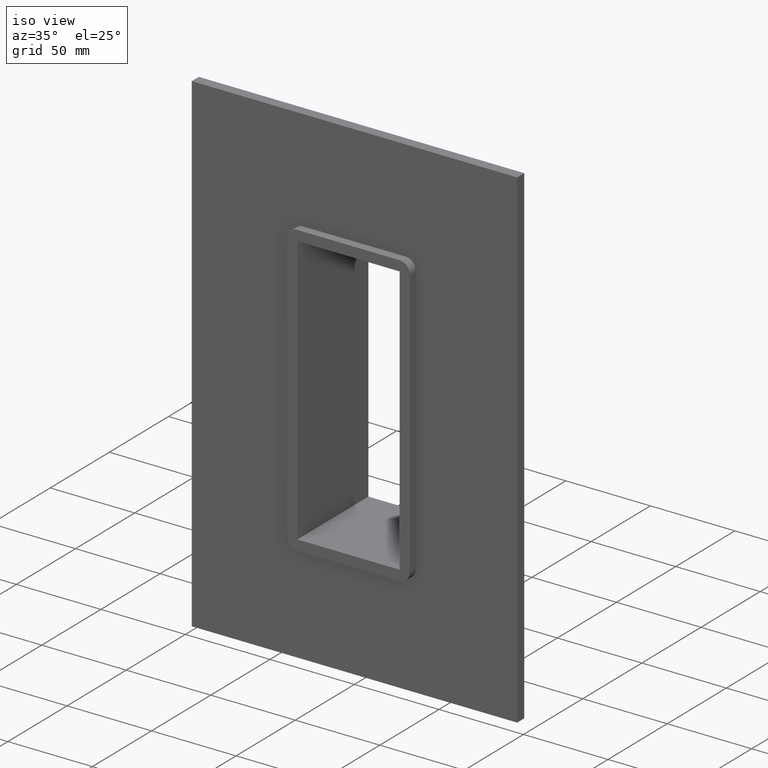
[diagram: clean part render]
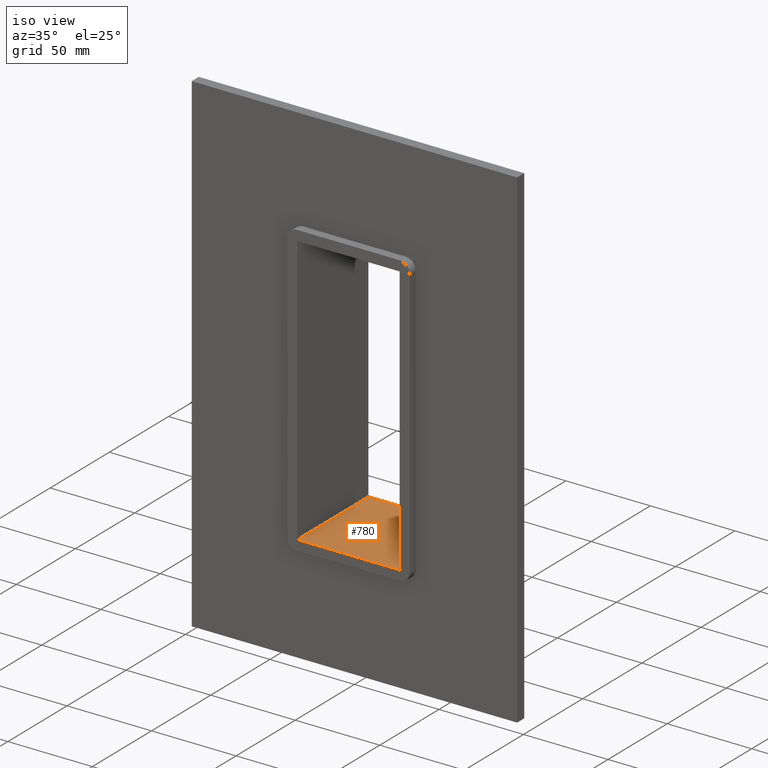
[diagram: same view with one face highlighted and labeled with its STEP entity id]
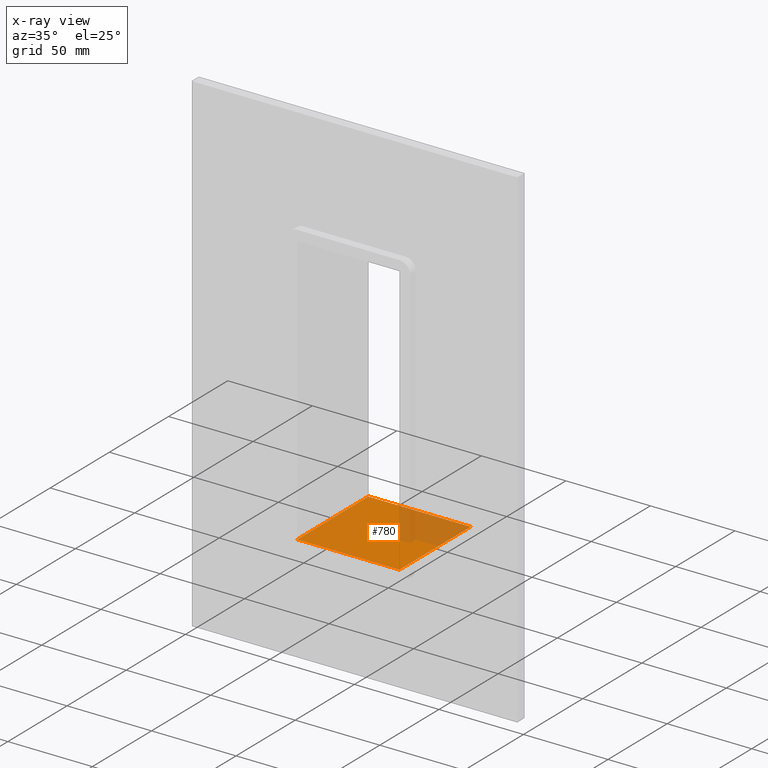
[diagram: x-ray of the same camera — body ghosted, the highlighted face saturated]
A machine part, iso view. The second image highlights one B-rep face of the part: STEP entity #780.
The next image is the same camera in x-ray: the body ghosted, the highlighted face saturated — about 26% of this face is hidden behind the body in this view.
In plain terms, the highlighted planar face has unit normal (0, 0, -1).
Its self-contained STEP definition (entity closure, byte-faithful):
#371=CARTESIAN_POINT('',(-30.249999999999986,-5.0,-79.75));
#372=VERTEX_POINT('',#371);
#379=CARTESIAN_POINT('',(-30.249999999999986,55.0,-79.75));
#380=VERTEX_POINT('',#379);
#381=CARTESIAN_POINT('',(-30.249999999999986,-5.0,-79.75));
#382=DIRECTION('',(0.0,1.0,0.0));
#383=VECTOR('',#382,60.0);
#384=LINE('',#381,#383);
#385=EDGE_CURVE('',#372,#380,#384,.T.);
#712=CARTESIAN_POINT('',(30.250000000000004,55.0,-79.75));
#713=VERTEX_POINT('',#712);
#720=CARTESIAN_POINT('',(30.250000000000004,-5.0,-79.75));
#721=VERTEX_POINT('',#720);
#722=CARTESIAN_POINT('',(30.250000000000004,55.0,-79.75));
#723=DIRECTION('',(0.0,-1.0,0.0));
#724=VECTOR('',#723,60.0);
#725=LINE('',#722,#724);
#726=EDGE_CURVE('',#713,#721,#725,.T.);
#759=CARTESIAN_POINT('',(30.250000000000004,0.0,-79.75));
#760=DIRECTION('',(0.0,0.0,-1.0));
#761=DIRECTION('',(-1.0,0.0,0.0));
#762=AXIS2_PLACEMENT_3D('',#759,#760,#761);
#763=PLANE('',#762);
#764=ORIENTED_EDGE('',*,*,#385,.F.);
#765=CARTESIAN_POINT('',(30.250000000000004,-5.0,-79.75));
#766=DIRECTION('',(-1.0,0.0,0.0));
#767=VECTOR('',#766,60.499999999999986);
#768=LINE('',#765,#767);
#769=EDGE_CURVE('',#721,#372,#768,.T.);
#770=ORIENTED_EDGE('',*,*,#769,.F.);
#771=ORIENTED_EDGE('',*,*,#726,.F.);
#772=CARTESIAN_POINT('',(-30.249999999999986,55.0,-79.75));
#773=DIRECTION('',(1.0,0.0,0.0));
#774=VECTOR('',#773,60.499999999999986);
#775=LINE('',#772,#774);
#776=EDGE_CURVE('',#380,#713,#775,.T.);
#777=ORIENTED_EDGE('',*,*,#776,.F.);
#778=EDGE_LOOP('',(#764,#770,#771,#777));
#779=FACE_OUTER_BOUND('',#778,.T.);
#780=ADVANCED_FACE('',(#779),#763,.F.);